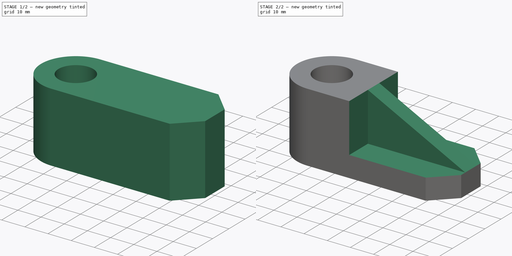
[diagram: build sequence overview — one tinted view per stage of 2, left to right]
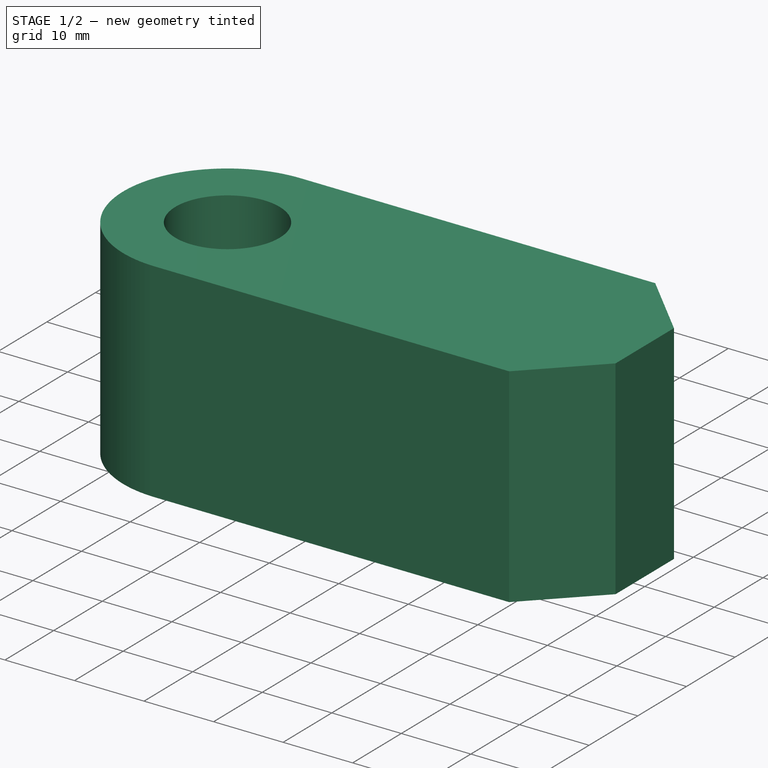
[diagram: stage 1 of 2 — iso view after this stage's code; geometry added in this stage tinted green]
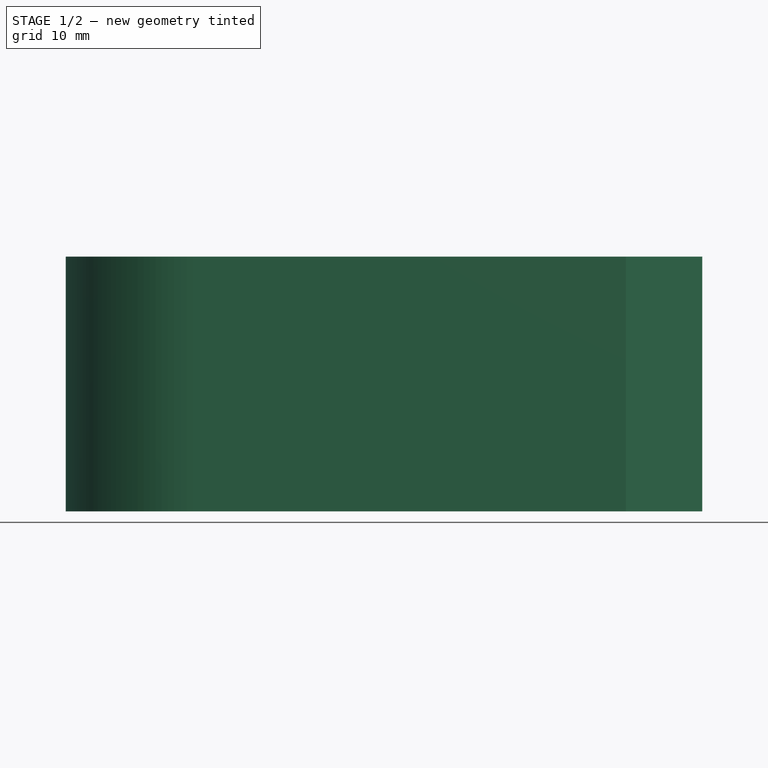
[diagram: stage 1 of 2 — front view after this stage's code; geometry added in this stage tinted green]
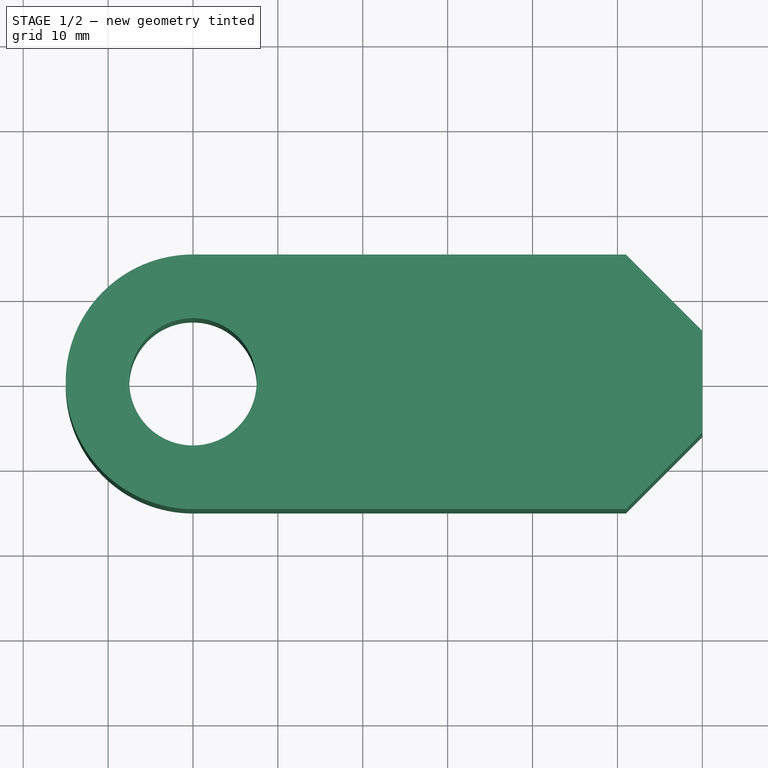
[diagram: stage 1 of 2 — top view after this stage's code; geometry added in this stage tinted green]
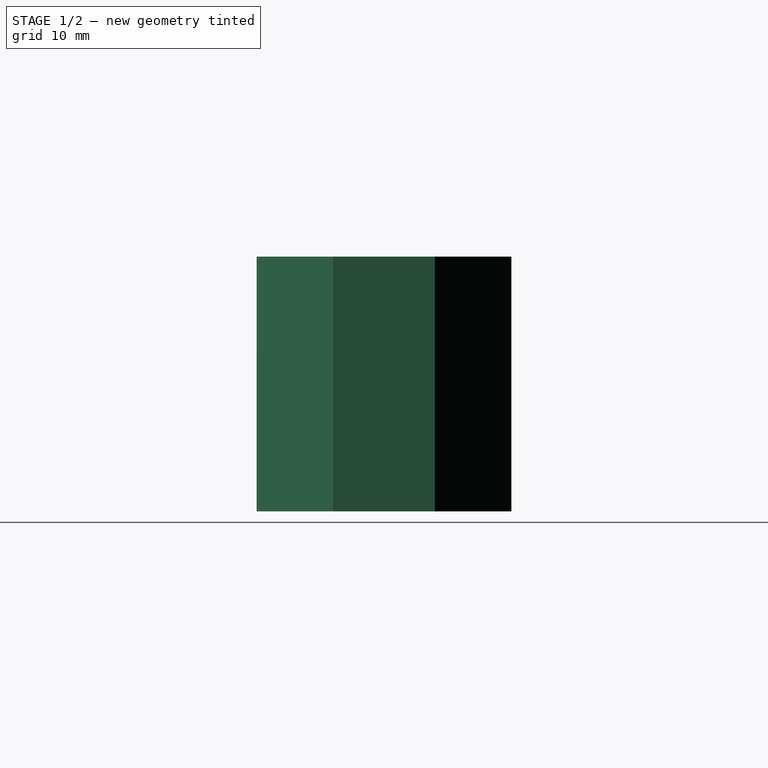
[diagram: stage 1 of 2 — right view after this stage's code; geometry added in this stage tinted green]
FCSTD DOCUMENT  (FreeCAD 0.18R4 (GitTag))
Label: Object6
License: All rights reserved
LicenseURL: http://en.wikipedia.org/wiki/All_rights_reserved
objects: Sketcher::SketchObject×4, PartDesign::Pad×2, PartDesign::Pocket×2, PartDesign::Body×1
note: 13 computed .brp shape members not serialized (recipe doc carries the construction recipe); baked Part::Feature solids carry a one-line shape summary decoded from their .brp

FEATURE [Sketcher::SketchObject] Sketch
  MapMode = 5
  Support = -> [XY_Plane]
  sketch-geometry (6):
    g0: LineSegment StartX=9e-16 StartY=15 StartZ=0 EndX=51 EndY=15 EndZ=0
    g1: LineSegment StartX=60 StartY=6 StartZ=0 EndX=60 EndY=-6 EndZ=0
    g2: LineSegment StartX=51 StartY=-15 StartZ=0 EndX=0 EndY=-15 EndZ=0
    g3: ArcOfCircle CenterX=9e-16 CenterY=-7e-16 CenterZ=0 NormalX=0 NormalY=0 NormalZ=1 AngleXU=0 Radius=15 StartAngle=1.5708 EndAngle=4.71239
    g4: LineSegment StartX=51 StartY=15 StartZ=0 EndX=60 EndY=6 EndZ=0
    g5: LineSegment StartX=51 StartY=-15 StartZ=0 EndX=60 EndY=-6 EndZ=0
  constraints (18):
    c: Horizontal(g0)
    c: Vertical(g3,g3)
    c: Vertical(g3,g3)
    c: Radius(g3) = 15
    c: Coincident(g0,g3)
    c: Coincident(g2,g3)
    c: PointOnObject(g3,g-2)
    c: Coincident(g1,g4)
    c: Coincident(g0,g4)
    c: PointOnObject(g2,g5)
    c: DistanceX(g-1,g1) = 60
    c: DistanceY(g2,g0) = 30
    c: Symmetric(g2,g0,g-1)
    c: Coincident(g1,g5)
    c: Symmetric(g1,g1,g-1)
    c: PointOnObject(g5,g2)
    c: DistanceX(g-1,g0) = 51
    c: DistanceY(g-1,g1) = 6
FEATURE [PartDesign::Pad] Pad
  Length = 30
  Length2 = 100
  Profile = -> Sketch
  Type = 0
FEATURE [Sketcher::SketchObject] Sketch002
  MapMode = 5
  Placement = pos=(0,0,30) rot=(0,0,1;0rad)
  sketch-geometry (1):
    g0: Circle CenterX=0 CenterY=0 CenterZ=0 NormalX=0 NormalY=0 NormalZ=1 AngleXU=0 Radius=7.5
  constraints (3):
    c: Radius(g0) = 7.5
    c: PointOnObject(g0,g-2)
    c: DistanceY(g-1,g0) = 0
FEATURE [PartDesign::Pocket] Pocket001
  BaseFeature = -> Pad
  Length = 30
  Length2 = 100
  Profile = -> Sketch002
  Type = 0
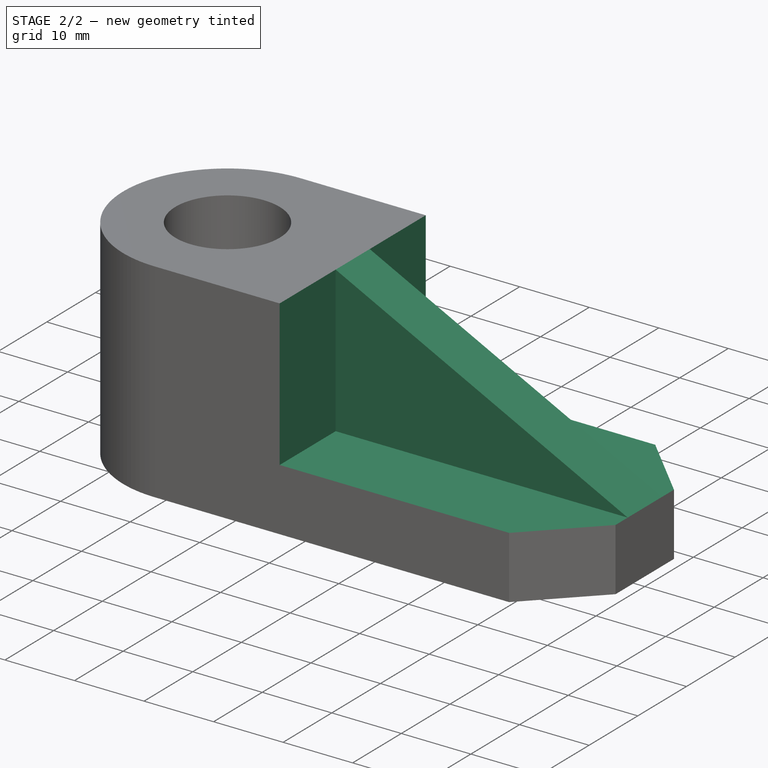
[diagram: stage 2 of 2 — iso view after this stage's code; geometry added in this stage tinted green]
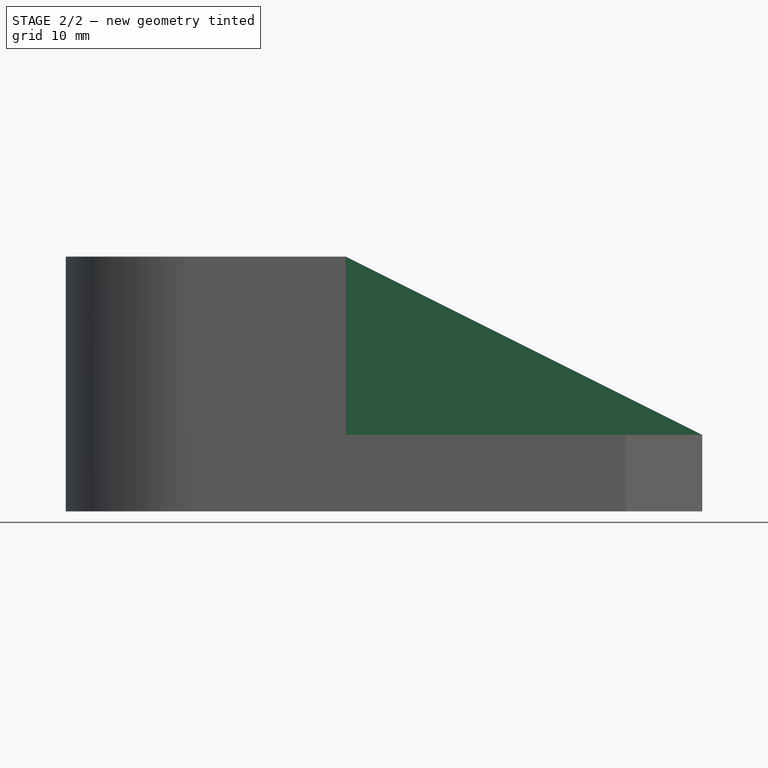
[diagram: stage 2 of 2 — front view after this stage's code; geometry added in this stage tinted green]
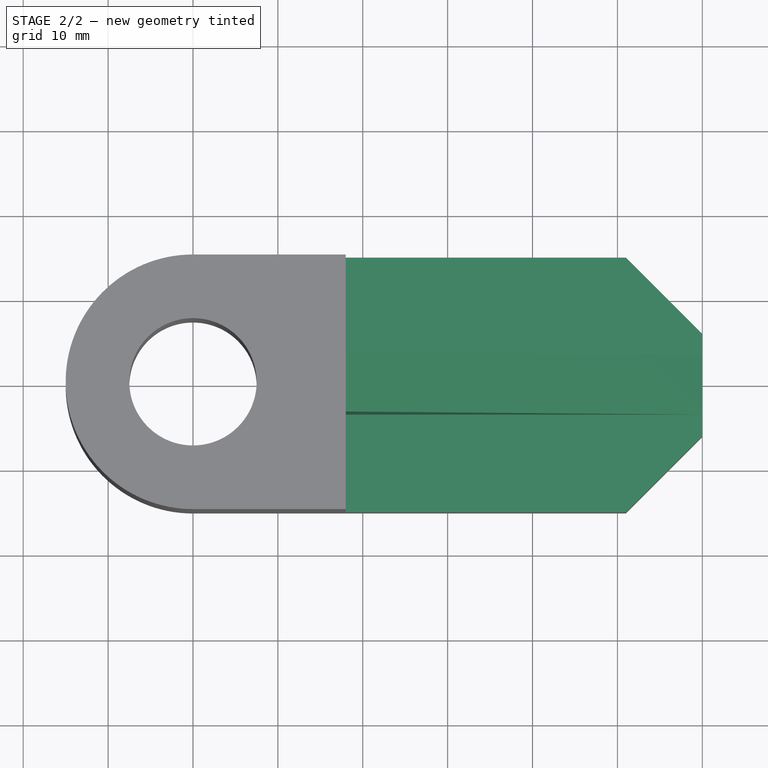
[diagram: stage 2 of 2 — top view after this stage's code; geometry added in this stage tinted green]
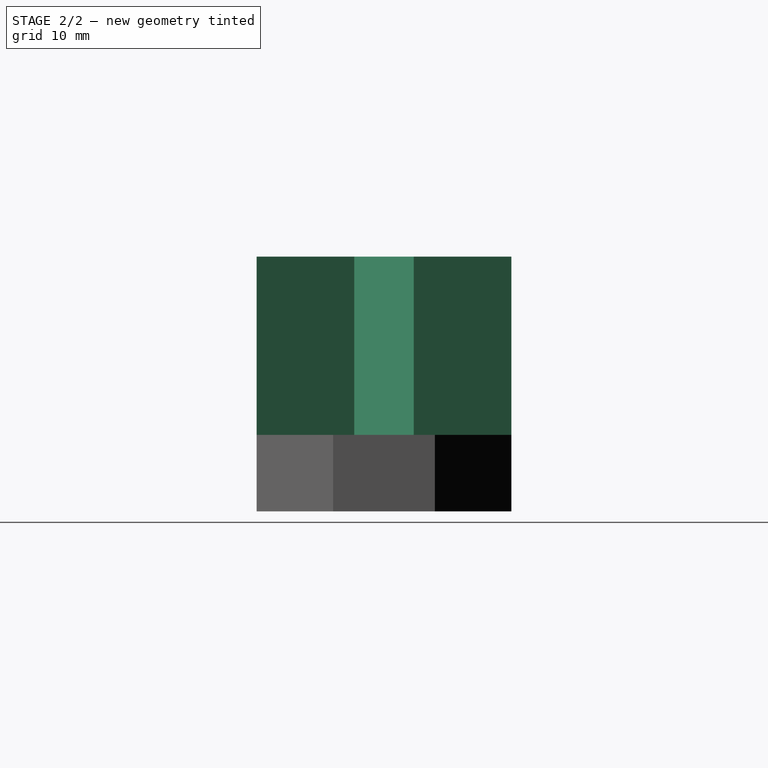
[diagram: stage 2 of 2 — right view after this stage's code; geometry added in this stage tinted green]
FEATURE [Sketcher::SketchObject] Sketch003
  MapMode = 5
  Placement = pos=(0,0,0) rot=(1,0,0;1.5708rad)
  Support = -> [XZ_Plane]
  sketch-geometry (3):
    g0: LineSegment StartX=18 StartY=30 StartZ=0 EndX=18 EndY=9 EndZ=0
    g1: LineSegment StartX=18 StartY=9 StartZ=0 EndX=60 EndY=9 EndZ=0
    g2: LineSegment StartX=60 StartY=9 StartZ=0 EndX=18 EndY=30 EndZ=0
  constraints (9):
    c: Coincident(g0,g1)
    c: Horizontal(g1)
    c: Coincident(g1,g2)
    c: Coincident(g2,g0)
    c: Vertical(g0)
    c: DistanceX(g-1,g0) = 18
    c: DistanceY(g-1,g1) = 9
    c: DistanceY(g0,g0) = 21
    c: DistanceX(g1,g1) = 42
FEATURE [Sketcher::SketchObject] Sketch004
  MapMode = 5
  Placement = pos=(0,0,30) rot=(0,0,1;0rad)
  sketch-geometry (4):
    g0: LineSegment StartX=18 StartY=15 StartZ=0 EndX=60 EndY=15 EndZ=0
    g1: LineSegment StartX=60 StartY=15 StartZ=0 EndX=60 EndY=-15 EndZ=0
    g2: LineSegment StartX=60 StartY=-15 StartZ=0 EndX=18 EndY=-15 EndZ=0
    g3: LineSegment StartX=18 StartY=-15 StartZ=0 EndX=18 EndY=15 EndZ=0
  constraints (11):
    c: Coincident(g0,g1)
    c: Coincident(g1,g2)
    c: Coincident(g2,g3)
    c: Coincident(g3,g0)
    c: Horizontal(g0)
    c: Horizontal(g2)
    c: Vertical(g3)
    c: Symmetric(g1,g0,g-1)
    c: DistanceY(g1,g1) = 30
    c: DistanceX(g-1,g0) = 60
    c: DistanceX(g-1,g0) = 18
FEATURE [PartDesign::Pocket] Pocket
  BaseFeature = -> Pocket001
  Length = 21
  Length2 = 100
  Profile = -> Sketch004
  Type = 0
FEATURE [PartDesign::Pad] Pad001
  BaseFeature = -> Pocket
  Length = 7
  Length2 = 100
  Midplane = true
  Profile = -> Sketch003
  Type = 0
FEATURE [PartDesign::Body] Body
  Group = -> [Sketch,Pad,Sketch002,Pocket001,Sketch003,Sketch004,Pocket,Pad001]
  Origin = -> Origin
  Tip = -> Pad001
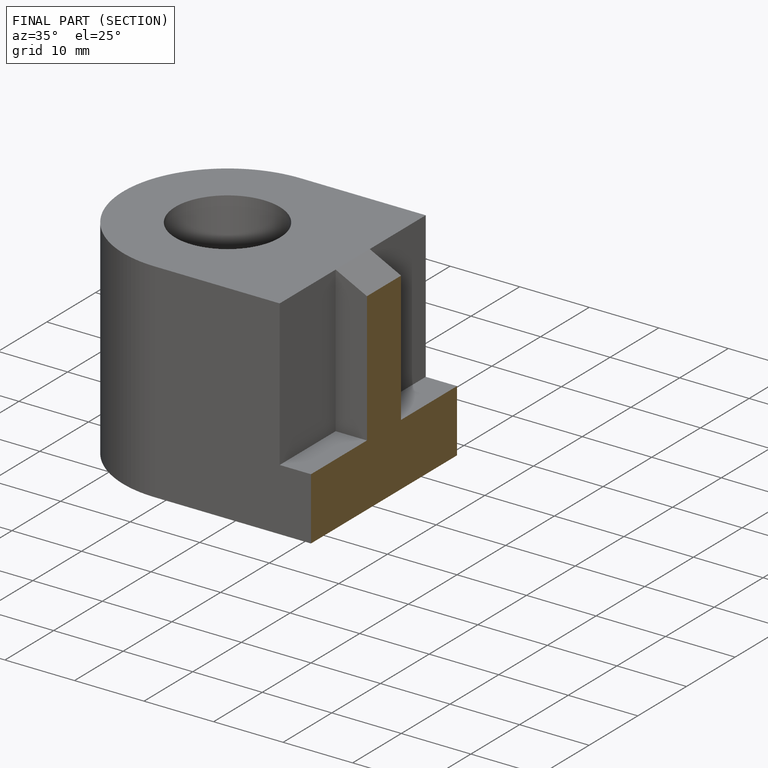
[diagram: finished part — half-section view (interior)]
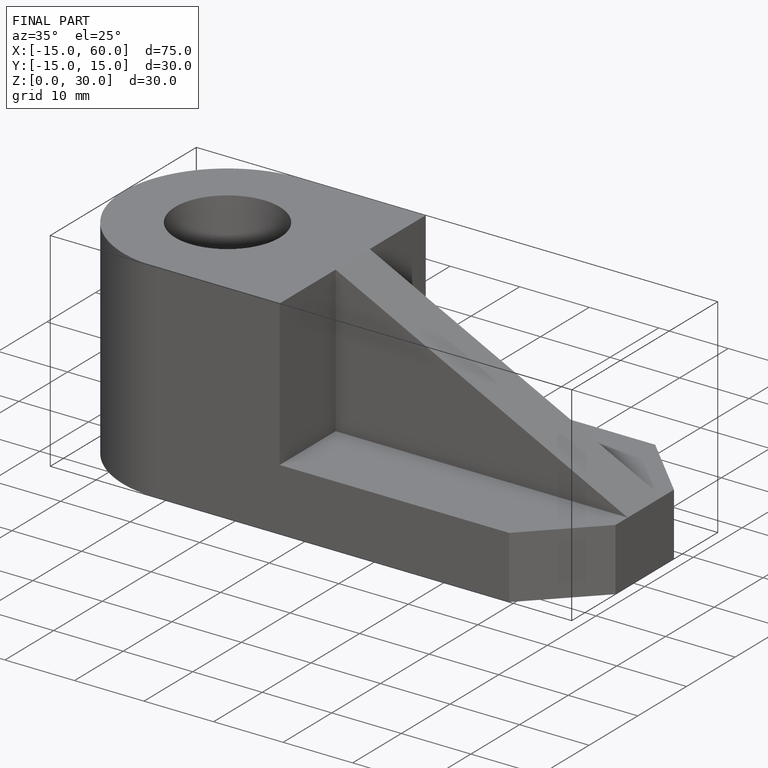
[diagram: finished part — iso view with bounding-box wireframe]
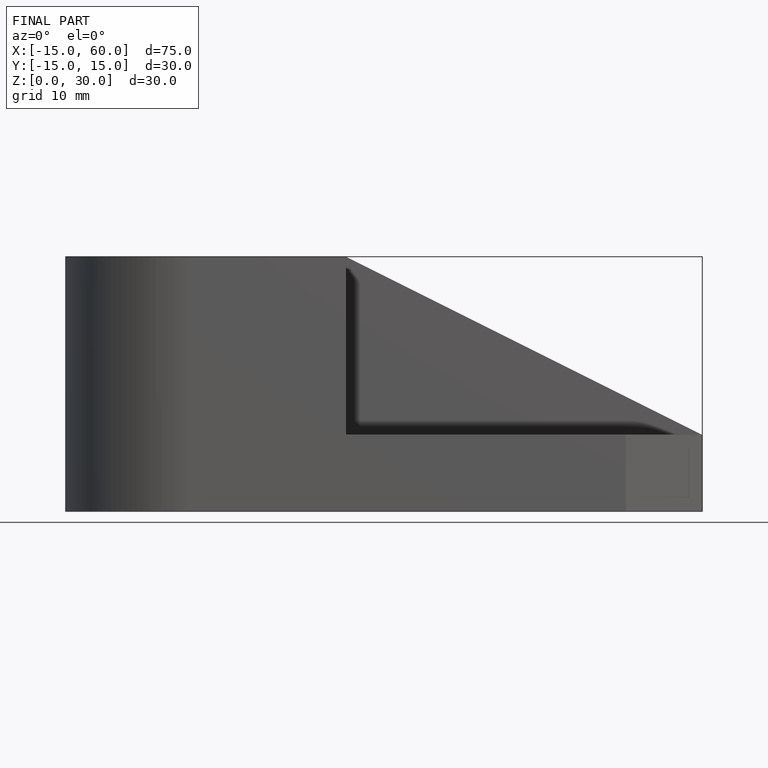
[diagram: finished part — front view with bounding-box wireframe]
